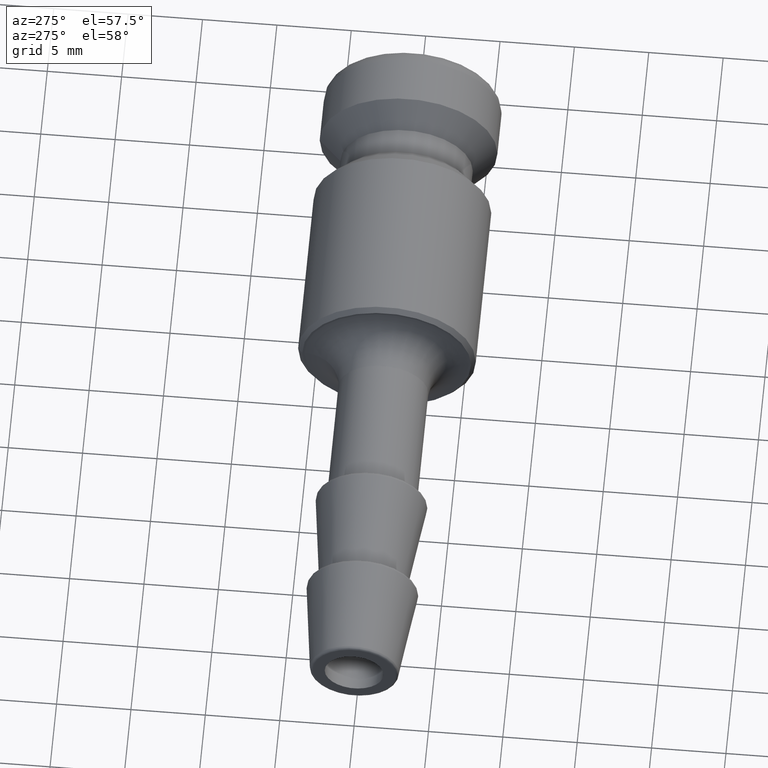
[diagram: clean part render]
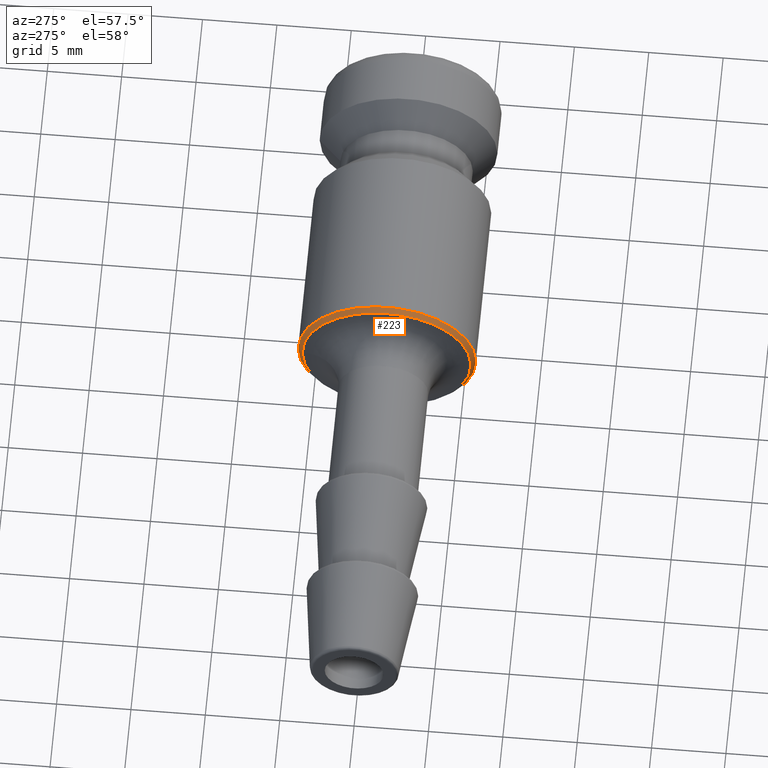
[diagram: same view with one face highlighted and labeled with its STEP entity id]
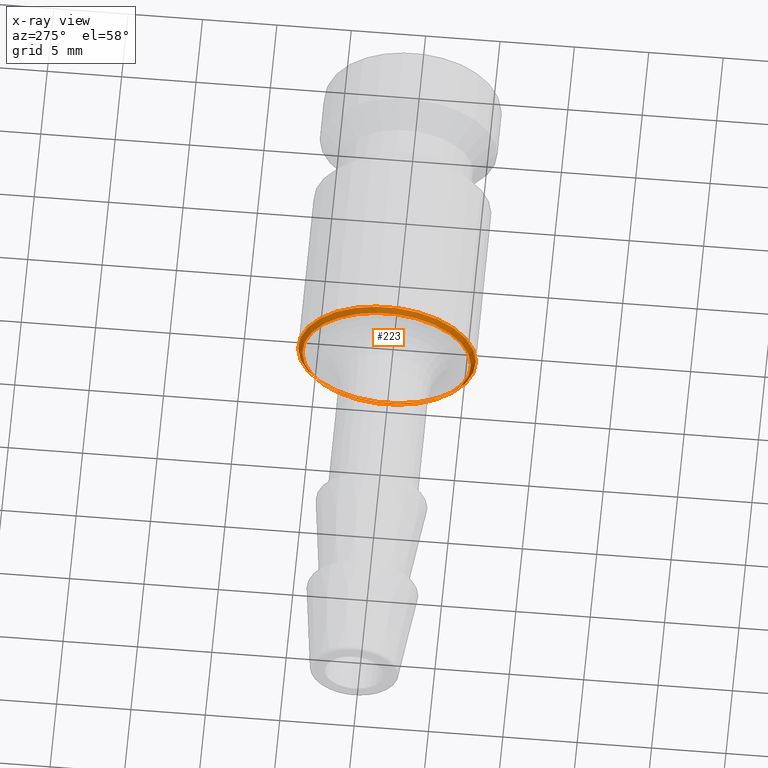
[diagram: x-ray of the same camera — body ghosted, the highlighted face saturated]
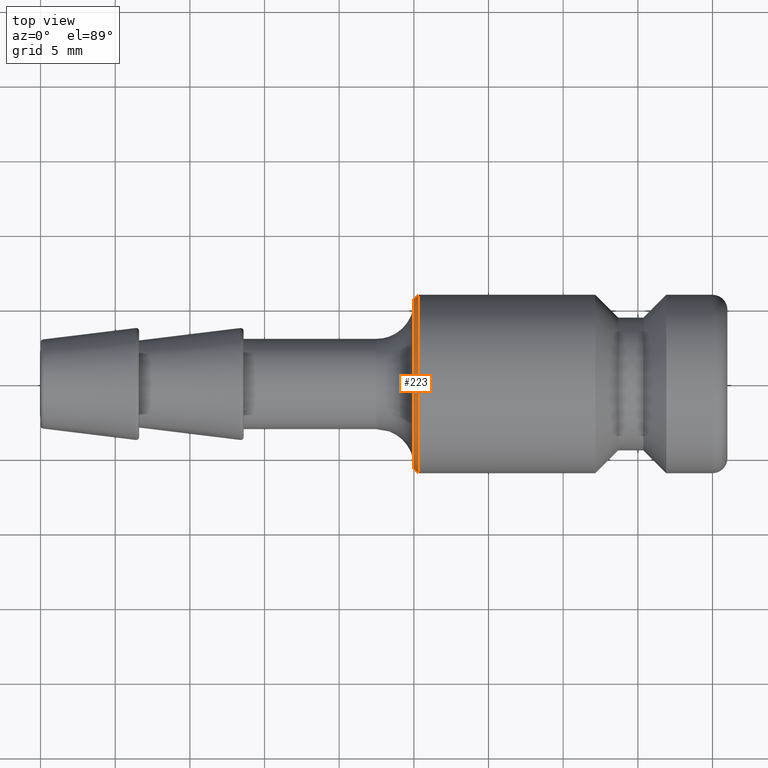
[diagram: same view with one face highlighted and labeled with its STEP entity id]
A machine part, auxiliary view. The second image highlights one B-rep face of the part: STEP entity #223.
The next image is the same camera in x-ray: the body ghosted, the highlighted face saturated — about 7% of this face is hidden behind the body in this view.
A second angle (top view) of the same face is appended — the face is thin or edge-on in the first view.
In plain terms, the highlighted conical surface has half-angle 45 deg.
Its self-contained STEP definition (entity closure, byte-faithful):
#101=CARTESIAN_POINT('',(25.0,5.675000000000006,6.949871E-016));
#102=VERTEX_POINT('',#101);
#103=CARTESIAN_POINT('',(25.0,3.061617E-015,0.0));
#104=DIRECTION('',(1.0,0.0,0.0));
#105=DIRECTION('',(0.0,-1.0,0.0));
#106=AXIS2_PLACEMENT_3D('',#103,#104,#105);
#107=CIRCLE('',#106,5.675000000000003);
#108=EDGE_CURVE('',#102,#102,#107,.T.);
#204=CARTESIAN_POINT('',(25.149999999999999,3.079987E-015,0.0));
#205=DIRECTION('',(1.0,1.224647E-016,0.0));
#206=DIRECTION('',(0.0,-1.0,0.0));
#207=AXIS2_PLACEMENT_3D('',#204,#205,#206);
#208=CONICAL_SURFACE('',#207,5.825000000000003,45.000000000000149);
#209=ORIENTED_EDGE('',*,*,#108,.T.);
#210=EDGE_LOOP('',(#209));
#211=FACE_OUTER_BOUND('',#210,.T.);
#212=CARTESIAN_POINT('',(25.299999999999997,5.975000000000006,-7.317265E-016));
#213=VERTEX_POINT('',#212);
#214=CARTESIAN_POINT('',(25.299999999999997,3.098356E-015,0.0));
#215=DIRECTION('',(-1.0,0.0,0.0));
#216=DIRECTION('',(0.0,-1.0,0.0));
#217=AXIS2_PLACEMENT_3D('',#214,#215,#216);
#218=CIRCLE('',#217,5.975000000000002);
#219=EDGE_CURVE('',#213,#213,#218,.T.);
#220=ORIENTED_EDGE('',*,*,#219,.T.);
#221=EDGE_LOOP('',(#220));
#222=FACE_BOUND('',#221,.T.);
#223=ADVANCED_FACE('',(#211,#222),#208,.T.);